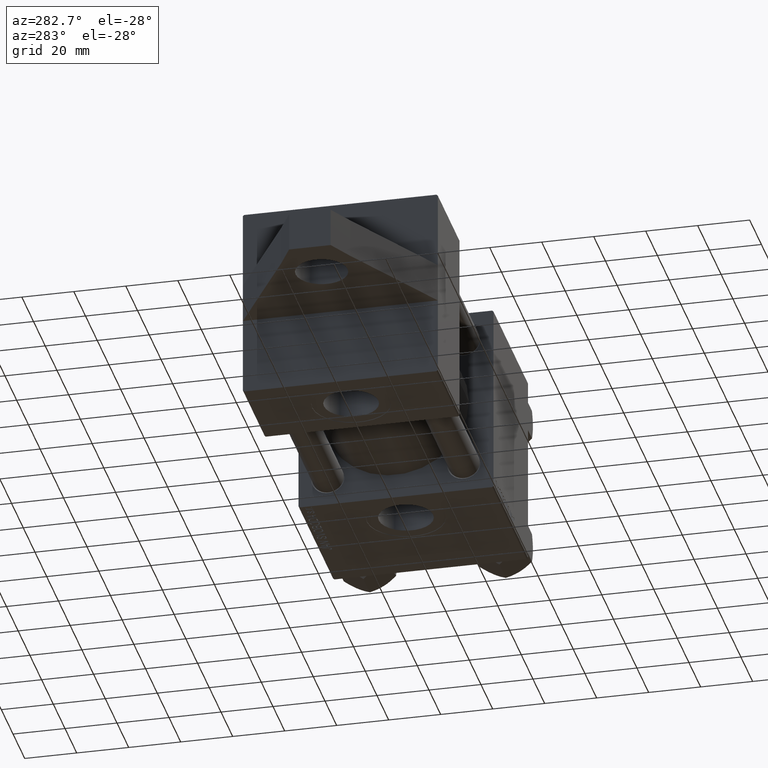
[diagram: clean part render]
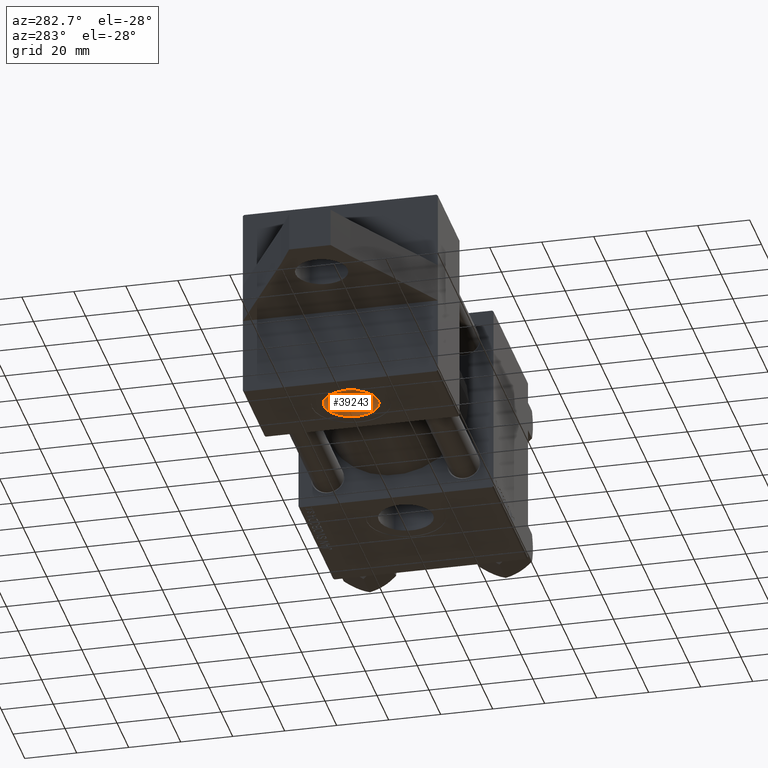
[diagram: same view with one face highlighted and labeled with its STEP entity id]
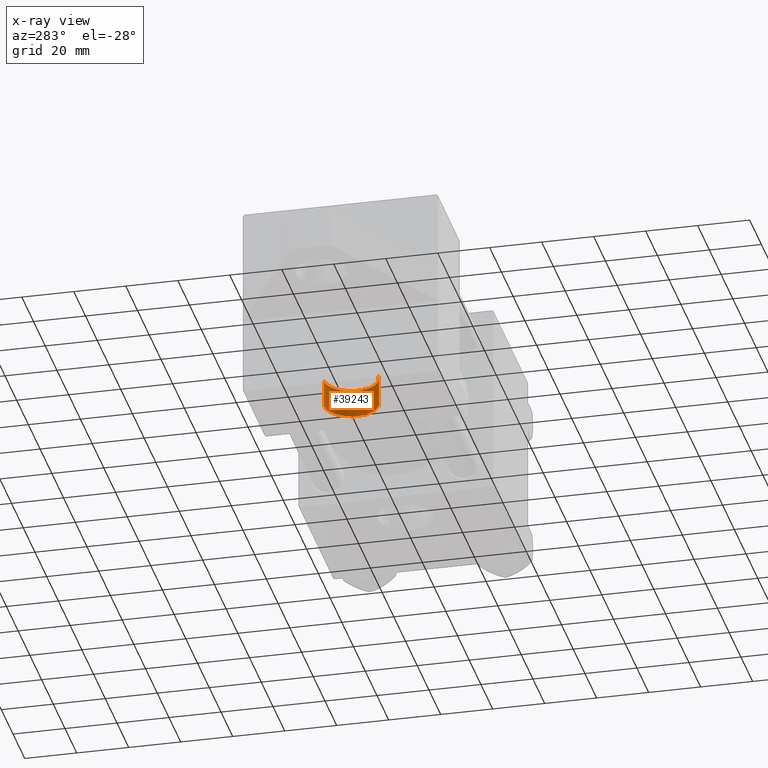
[diagram: x-ray of the same camera — body ghosted, the highlighted face saturated]
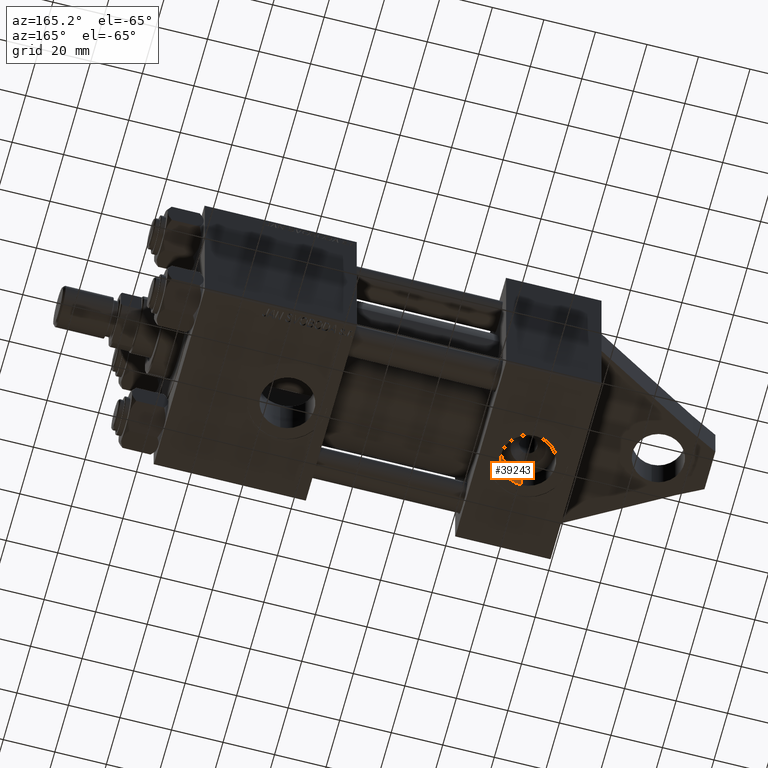
[diagram: same view with one face highlighted and labeled with its STEP entity id]
A machine part, auxiliary view. The second image highlights one B-rep face of the part: STEP entity #39243.
The next image is the same camera in x-ray: the body ghosted, the highlighted face saturated — about 0% of this face is hidden behind the body in this view.
A second angle (auxiliary view) of the same face is appended — the face is thin or edge-on in the first view.
In plain terms, the highlighted cylindrical surface (edge-blend (fillet) strip) has radius 10.48 mm, axis along (-0, 0, -1).
Its self-contained STEP definition (entity closure, byte-faithful):
#1952 = VECTOR ( 'NONE', #2830, 1000.000000000000000 ) ;
#2182 = DIRECTION ( 'NONE',  ( 0.000000000000000000, 0.000000000000000000, -1.000000000000000000 ) ) ;
#2830 = DIRECTION ( 'NONE',  ( -0.000000000000000000, -1.000000000000000000, -8.673617379884036705E-17 ) ) ;
#3004 = ORIENTED_EDGE ( 'NONE', *, *, #15351, .T. ) ;
#3234 = LINE ( 'NONE', #17577, #41900 ) ;
#3291 = CARTESIAN_POINT ( 'NONE',  ( 18.50000000000000000, -26.60000000000000497, 10.47999999999999865 ) ) ;
#3683 = CARTESIAN_POINT ( 'NONE',  ( 18.50000000000000000, -37.30000000000000426, 10.47999999999999687 ) ) ;
#4692 = AXIS2_PLACEMENT_3D ( 'NONE', #12405, #44859, #38269 ) ;
#5934 = FACE_OUTER_BOUND ( 'NONE', #6243, .T. ) ;
#6116 = LINE ( 'NONE', #3291, #1952 ) ;
#6243 = EDGE_LOOP ( 'NONE', ( #7302, #30286, #3004, #37069 ) ) ;
#7302 = ORIENTED_EDGE ( 'NONE', *, *, #11845, .F. ) ;
#9757 = VERTEX_POINT ( 'NONE', #3683 ) ;
#11845 = EDGE_CURVE ( 'NONE', #43893, #9757, #6116, .T. ) ;
#12405 = CARTESIAN_POINT ( 'NONE',  ( 18.50000000000000000, -26.60000000000000497, -2.524022657546255111E-15 ) ) ;
#15351 = EDGE_CURVE ( 'NONE', #30113, #23342, #3234, .T. ) ;
#16461 = DIRECTION ( 'NONE',  ( 0.000000000000000000, 0.000000000000000000, -1.000000000000000000 ) ) ;
#17577 = CARTESIAN_POINT ( 'NONE',  ( 18.50000000000000000, -26.60000000000000497, -10.48000000000000220 ) ) ;
#18494 = DIRECTION ( 'NONE',  ( -0.000000000000000000, -1.000000000000000000, -8.673617379884036705E-17 ) ) ;
#21213 = CIRCLE ( 'NONE', #4692, 10.48000000000000043 ) ;
#21557 = CARTESIAN_POINT ( 'NONE',  ( 18.50000000000000000, -37.30000000000000426, -10.48000000000000398 ) ) ;
#22169 = CARTESIAN_POINT ( 'NONE',  ( 18.50000000000000000, -26.60000000000000497, -10.48000000000000220 ) ) ;
#22859 = CARTESIAN_POINT ( 'NONE',  ( 18.50000000000000000, -26.60000000000000497, 10.47999999999999865 ) ) ;
#22951 = CIRCLE ( 'NONE', #27446, 10.48000000000000043 ) ;
#23342 = VERTEX_POINT ( 'NONE', #21557 ) ;
#27446 = AXIS2_PLACEMENT_3D ( 'NONE', #45380, #38100, #16461 ) ;
#29760 = AXIS2_PLACEMENT_3D ( 'NONE', #34393, #40990, #2182 ) ;
#30113 = VERTEX_POINT ( 'NONE', #22169 ) ;
#30286 = ORIENTED_EDGE ( 'NONE', *, *, #30534, .F. ) ;
#30534 = EDGE_CURVE ( 'NONE', #30113, #43893, #21213, .T. ) ;
#34393 = CARTESIAN_POINT ( 'NONE',  ( 18.50000000000000000, -26.60000000000000497, -2.524022657546255111E-15 ) ) ;
#34615 = CYLINDRICAL_SURFACE ( 'NONE', #29760, 10.48000000000000043 ) ;
#36953 = EDGE_CURVE ( 'NONE', #23342, #9757, #22951, .T. ) ;
#37069 = ORIENTED_EDGE ( 'NONE', *, *, #36953, .T. ) ;
#38100 = DIRECTION ( 'NONE',  ( 0.000000000000000000, -1.000000000000000000, -8.673617379884036705E-17 ) ) ;
#38269 = DIRECTION ( 'NONE',  ( 0.000000000000000000, 0.000000000000000000, -1.000000000000000000 ) ) ;
#39243 = ADVANCED_FACE ( 'NONE', ( #5934 ), #34615, .F. ) ;
#40990 = DIRECTION ( 'NONE',  ( -0.000000000000000000, -1.000000000000000000, -8.673617379884036705E-17 ) ) ;
#41900 = VECTOR ( 'NONE', #18494, 1000.000000000000000 ) ;
#43893 = VERTEX_POINT ( 'NONE', #22859 ) ;
#44859 = DIRECTION ( 'NONE',  ( 0.000000000000000000, -1.000000000000000000, -8.673617379884036705E-17 ) ) ;
#45380 = CARTESIAN_POINT ( 'NONE',  ( 18.50000000000000000, -37.30000000000000426, -3.452099717193846907E-15 ) ) ;